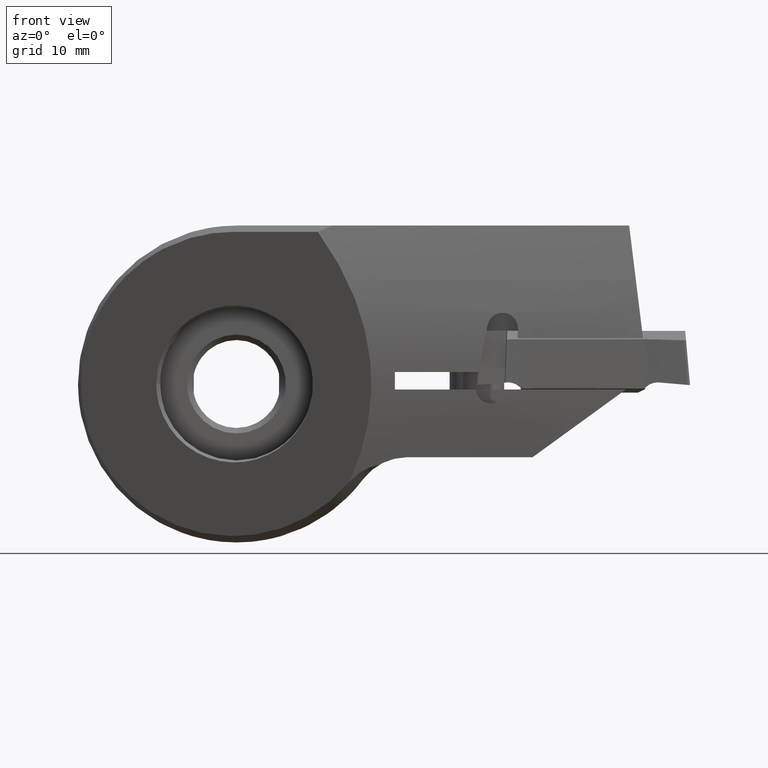
[diagram: clean part render]
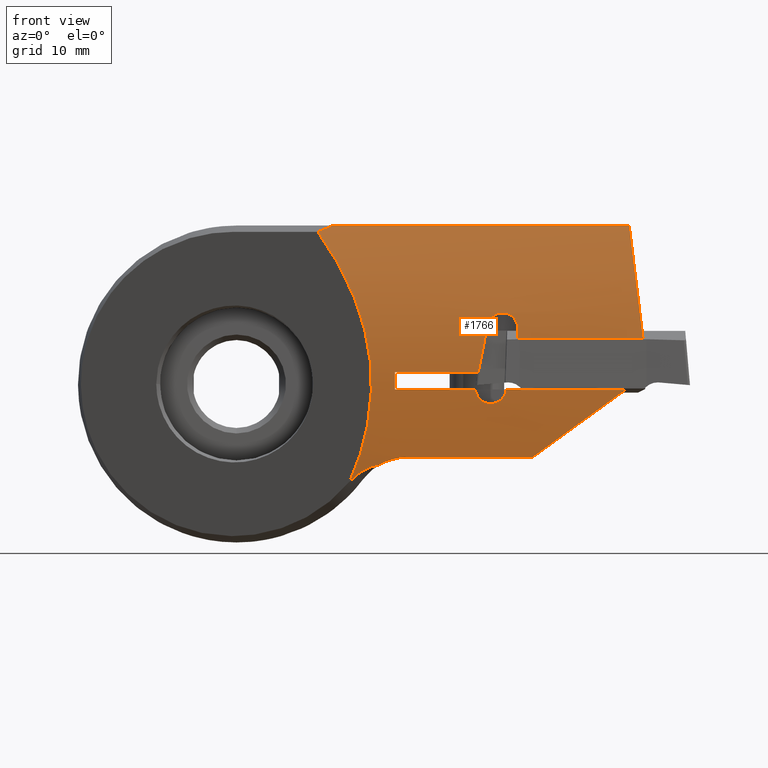
[diagram: same view with one face highlighted and labeled with its STEP entity id]
A machine part, front view. The second image highlights one B-rep face of the part: STEP entity #1766.
In plain terms, the highlighted cylindrical surface (partial cylindrical patch) has radius 43.5 mm, axis along (-1, -0, -0).
Its self-contained STEP definition (entity closure, byte-faithful):
#852=VERTEX_POINT('NONE',#2333);
#902=VERTEX_POINT('NONE',#2387);
#932=EDGE_CURVE('Kante115',#1468,#1460,#2420,.T.);
#974=VERTEX_POINT('NONE',#2467);
#1064=EDGE_CURVE('Kante129',#1834,#2154,#2566,.T.);
#1114=EDGE_CURVE('Kante112',#2132,#1922,#2622,.T.);
#1172=EDGE_CURVE('Kante83',#2132,#2154,#2687,.T.);
#1180=VERTEX_POINT('NONE',#2695);
#1198=EDGE_CURVE('NONE',#1820,#1900,#2713,.T.);
#1210=VERTEX_POINT('NONE',#2725);
#1244=EDGE_CURVE('Kante44',#1210,#1830,#2763,.T.);
#1250=VERTEX_POINT('NONE',#2769);
#1254=VERTEX_POINT('NONE',#2774);
#1270=EDGE_CURVE('NONE',#1180,#1870,#2790,.T.);
#1286=EDGE_CURVE('NONE',#1460,#1250,#2807,.T.);
#1460=VERTEX_POINT('NONE',#2996);
#1468=VERTEX_POINT('NONE',#3005);
#1488=EDGE_CURVE('Kante71',#902,#852,#3027,.T.);
#1536=EDGE_CURVE('Kante70',#1250,#1254,#3081,.T.);
#1542=VERTEX_POINT('NONE',#3088);
#1544=EDGE_CURVE('NONE',#1830,#1834,#3090,.T.);
#1672=EDGE_CURVE('Kante65',#974,#1180,#3229,.T.);
#1702=VERTEX_POINT('NONE',#3260);
#1766=ADVANCED_FACE('NONE',(#3330),#3331,.T.);
#1820=VERTEX_POINT('NONE',#3392);
#1830=VERTEX_POINT('NONE',#3402);
#1834=VERTEX_POINT('NONE',#3406);
#1844=EDGE_CURVE('NONE',#1922,#974,#3419,.F.);
#1870=VERTEX_POINT('NONE',#3447);
#1872=EDGE_CURVE('Kante42',#1468,#1210,#3449,.T.);
#1900=VERTEX_POINT('NONE',#3480);
#1916=EDGE_CURVE('Kante43',#852,#1542,#3497,.T.);
#1922=VERTEX_POINT('NONE',#3503);
#1948=EDGE_CURVE('Kante72',#1900,#1254,#3530,.T.);
#2074=EDGE_CURVE('Kante101',#1870,#902,#3674,.T.);
#2124=EDGE_CURVE('Kante32',#1820,#1702,#3728,.T.);
#2132=VERTEX_POINT('NONE',#3737);
#2136=EDGE_CURVE('Kante68',#1702,#1542,#3741,.T.);
#2154=VERTEX_POINT('NONE',#3762);
#2333=CARTESIAN_POINT('',(15.6,-21.6809260021233,-6.7));
#2387=CARTESIAN_POINT('',(13.0859490036588,-21.569743212816,-7.3780157811719));
#2420=LINE('',#4184,#4185);
#2467=CARTESIAN_POINT('',(7.44293815787788,-19.9117994839783,13.9225566363498));
#2566=LINE('',#4425,#4426);
#2622=LINE('',#4551,#4552);
#2687=ELLIPSE('',#4701,43.8266774074599,43.5);
#2695=CARTESIAN_POINT('',(10.3681195455965,-21.275833966564,-8.91898884692533));
#2713=ELLIPSE('',#4748,44.3141762305518,43.5);
#2725=CARTESIAN_POINT('',(22.9660219431733,-21.8676254584787,5.36713259352716));
#2763=B_SPLINE_CURVE_WITH_KNOTS('',3,(#4824,#4825,#4826,#4827,#4828,#4829,#4830,#4831,#4832,#4833,#4834,#4835,#4836,#4837,#4838,#4839,#4840,#4841,#4842,#4843,#4844,#4845,#4846,#4847,#4848,#4849,#4850,#4851,#4852,#4853,#4854),.UNSPECIFIED.,.F.,.F.,(4,2,2,2,2,2,2,3,2,2,2,2,2,2,4),(-3.70675572449579,-3.17962384815258,-2.64915401871128,-2.11868418926997,-1.58663422030921,-1.05458425134846,-0.527292125674229,0.0,0.527292125674229,1.05458425134846,1.58663422030921,2.11868418926997,2.64915401871128,3.17962384815258,3.70675572449579),.UNSPECIFIED.);
#2769=CARTESIAN_POINT('',(14.5,-22.1971263418631,-0.499999999999999));
#2774=CARTESIAN_POINT('',(21.8747842953657,-22.1971263418631,-0.5));
#2790=B_SPLINE_CURVE_WITH_KNOTS('',3,(#4889,#4890,#4891,#4892),.UNSPECIFIED.,.F.,.F.,(4,4),(-2.17256673236491,-0.0),.UNSPECIFIED.);
#2807=CIRCLE('',#4915,43.5);
#2996=CARTESIAN_POINT('',(14.5,-22.1860897299355,1.1));
#3005=CARTESIAN_POINT('',(22.1365753905119,-22.1860897299355,1.1));
#3027=B_SPLINE_CURVE_WITH_KNOTS('',3,(#5406,#5407,#5408,#5409,#5410,#5411,#5412,#5413,#5414,#5415,#5416,#5417,#5418,#5419,#5420,#5421,#5422,#5423),.UNSPECIFIED.,.F.,.F.,(4,2,2,2,2,2,2,2,4),(7.57098965901422,8.31604520726319,9.06110075551216,9.79284171407472,10.5245826726373,11.2563236311998,11.9880645897624,12.7198055483249,13.4515465068875),.UNSPECIFIED.);
#3081=LINE('',#5501,#5502);
#3088=CARTESIAN_POINT('',(27.1,-21.6809260021233,-6.7));
#3090=CIRCLE('',#5512,43.5);
#3229=ELLIPSE('',#5746,102.929768867133,43.5);
#3260=CARTESIAN_POINT('',(35.6335679069214,-22.1971263418631,-0.499999999999999));
#3330=FACE_OUTER_BOUND('',#5921,.T.);
#3331=CYLINDRICAL_SURFACE('',#5922,43.5);
#3392=CARTESIAN_POINT('',(24.6779736417661,-22.1971263418631,-0.5));
#3402=CARTESIAN_POINT('',(25.7403,-21.9,5.1));
#3406=CARTESIAN_POINT('',(25.7403,-21.9967666229246,4.20000000000001));
#3419=ELLIPSE('',#6063,170.070600471816,43.5);
#3447=CARTESIAN_POINT('',(10.9362458107321,-21.3800676624774,-8.40605878675312));
#3449=ELLIPSE('',#6109,44.3141762305518,43.5);
#3480=CARTESIAN_POINT('',(24.6454863565693,-22.1948839991861,-0.667132593527155));
#3497=LINE('',#6185,#6186);
#3503=CARTESIAN_POINT('',(8.81207596660452,-19.7121933088198,14.5));
#3530=B_SPLINE_CURVE_WITH_KNOTS('',3,(#6375,#6376,#6377,#6378,#6379,#6380,#6381,#6382,#6383,#6384,#6385,#6386,#6387,#6388,#6389,#6390,#6391,#6392,#6393,#6394,#6395,#6396,#6397,#6398,#6399,#6400,#6401,#6402,#6403,#6404),.UNSPECIFIED.,.F.,.F.,(4,2,2,2,2,2,2,2,2,2,2,2,2,2,4),(0.527393232653775,1.05478646530755,1.58214975150144,2.10951303769534,2.63699756863369,3.16448209957203,3.69188743212655,4.21929276468107,4.74669809723558,5.2741034297901,5.80158796072845,6.3290724916668,6.85643577786069,7.38379906405458,7.91119229670836),.UNSPECIFIED.);
#3674=B_SPLINE_CURVE_WITH_KNOTS('',3,(#6627,#6628,#6629,#6630,#6631,#6632,#6633,#6634),.UNSPECIFIED.,.F.,.F.,(4,2,2,4),(-2.09646410861757,-0.959108859915527,-0.525215119087045,-0.0),.UNSPECIFIED.);
#3728=LINE('',#6727,#6728);
#3737=CARTESIAN_POINT('',(35.9353190227002,-19.7121933088198,14.5));
#3741=ELLIPSE('',#6745,74.006620326628,43.5);
#3762=CARTESIAN_POINT('',(37.2,-21.9967666229246,4.20000000000001));
#4184=CARTESIAN_POINT('',(-17.6127080987776,-22.1860897299355,1.1));
#4185=VECTOR('',#7154,1.0);
#4425=CARTESIAN_POINT('',(-17.6127080987776,-21.9967666229246,4.20000000000001));
#4426=VECTOR('',#7317,1.0);
#4551=CARTESIAN_POINT('',(-17.6127080987776,-19.7121933088198,14.5));
#4552=VECTOR('',#7386,1.0);
#4701=AXIS2_PLACEMENT_3D('',#7462,#7463,#7464);
#4748=AXIS2_PLACEMENT_3D('',#7477,#7478,#7479);
#4824=CARTESIAN_POINT('',(23.8049141856533,-22.0331421026392,3.80641504732147));
#4825=CARTESIAN_POINT('',(23.6326204192629,-22.0268783090666,3.87772357655864));
#4826=CARTESIAN_POINT('',(23.4754151705198,-22.0172415022297,3.98523080219323));
#4827=CARTESIAN_POINT('',(23.2264495050549,-21.9936646432341,4.23370692005608));
#4828=CARTESIAN_POINT('',(23.118430117894,-21.9781105086881,4.39150309016154));
#4829=CARTESIAN_POINT('',(22.9753610502565,-21.9416739915236,4.73685328089034));
#4830=CARTESIAN_POINT('',(22.9403,-21.9207310048287,4.92439619439184));
#4831=CARTESIAN_POINT('',(22.9403,-21.8792072425923,5.27612688627666));
#4832=CARTESIAN_POINT('',(22.9755482980711,-21.8558340784187,5.46391196601479));
#4833=CARTESIAN_POINT('',(23.118932018971,-21.8106865426616,5.80939366865678));
#4834=CARTESIAN_POINT('',(23.2270685953612,-21.7889727469151,5.96709772615497));
#4835=CARTESIAN_POINT('',(23.4759536607507,-21.7538944124633,6.21512041453671));
#4836=CARTESIAN_POINT('',(23.632919727606,-21.7381475665388,6.32242348819066));
#4837=CARTESIAN_POINT('',(23.9772062673065,-21.7169809039285,6.46486957685472));
#4838=CARTESIAN_POINT('',(24.1645359581086,-21.7116263352131,6.5));
#4839=CARTESIAN_POINT('',(24.3403,-21.7116263352131,6.5));
#4840=CARTESIAN_POINT('',(24.5160640418914,-21.7116263352131,6.5));
#4841=CARTESIAN_POINT('',(24.7033937326935,-21.7169809039285,6.46486957685472));
#4842=CARTESIAN_POINT('',(25.047680272394,-21.7381475665388,6.32242348819066));
#4843=CARTESIAN_POINT('',(25.2046463392493,-21.7538944124633,6.21512041453671));
#4844=CARTESIAN_POINT('',(25.4535314046388,-21.7889727469151,5.96709772615498));
#4845=CARTESIAN_POINT('',(25.561667981029,-21.8106865426616,5.80939366865678));
#4846=CARTESIAN_POINT('',(25.7050517019289,-21.8558340784187,5.46391196601479));
#4847=CARTESIAN_POINT('',(25.7403,-21.8792072425923,5.27612688627666));
#4848=CARTESIAN_POINT('',(25.7403,-21.9207310048287,4.92439619439184));
#4849=CARTESIAN_POINT('',(25.7052389497435,-21.9416739915236,4.73685328089034));
#4850=CARTESIAN_POINT('',(25.562169882106,-21.9781105086881,4.39150309016154));
#4851=CARTESIAN_POINT('',(25.4541504949451,-21.9936646432341,4.23370692005608));
#4852=CARTESIAN_POINT('',(25.2051848294802,-22.0172415022297,3.98523080219323));
#4853=CARTESIAN_POINT('',(25.0479795807371,-22.0268783090666,3.87772357655864));
#4854=CARTESIAN_POINT('',(24.8756858143467,-22.0331421026392,3.80641504732147));
#4889=CARTESIAN_POINT('',(10.0366866190972,-21.2190206056165,-9.18601582510914));
#4890=CARTESIAN_POINT('',(10.5975200563494,-21.3126716369851,-8.75253626135632));
#4891=CARTESIAN_POINT('',(10.8513525242242,-21.3674330343232,-8.48503899453891));
#4892=CARTESIAN_POINT('',(11.3697356848344,-21.4602944290502,-7.98794218437629));
#4915=AXIS2_PLACEMENT_3D('',#7551,#7552,#7553);
#5406=CARTESIAN_POINT('',(11.6064690564624,-21.3228773300921,-8.69139391029541));
#5407=CARTESIAN_POINT('',(11.7651830313351,-21.3658362724741,-8.48072186330033));
#5408=CARTESIAN_POINT('',(11.9412613726742,-21.4046764022959,-8.28217955744991));
#5409=CARTESIAN_POINT('',(12.3162565591376,-21.4732409122962,-7.92046379355148));
#5410=CARTESIAN_POINT('',(12.5151770591915,-21.5029820516788,-7.7572973016177));
#5411=CARTESIAN_POINT('',(12.9152761464541,-21.5531850164227,-7.47493989082742));
#5412=CARTESIAN_POINT('',(13.1321706959629,-21.5757690156352,-7.34384627839024));
#5413=CARTESIAN_POINT('',(13.5925476181176,-21.6145942490457,-7.11345536866991));
#5414=CARTESIAN_POINT('',(13.8360282296099,-21.6308521082241,-7.01415735410275));
#5415=CARTESIAN_POINT('',(14.3356921614102,-21.6564906663561,-6.85539026367339));
#5416=CARTESIAN_POINT('',(14.5921374462409,-21.6658948712635,-6.79583875906904));
#5417=CARTESIAN_POINT('',(15.1023342396053,-21.6781121045912,-6.71814159219057));
#5418=CARTESIAN_POINT('',(15.3560863471458,-21.6809260021233,-6.7));
#5419=CARTESIAN_POINT('',(15.8439136528542,-21.6809260021233,-6.7));
#5420=CARTESIAN_POINT('',(16.0976657603947,-21.6781121045912,-6.71814159219057));
#5421=CARTESIAN_POINT('',(16.6078625537591,-21.6658948712635,-6.79583875906904));
#5422=CARTESIAN_POINT('',(16.8643078385897,-21.6564906663561,-6.85539026367338));
#5423=CARTESIAN_POINT('',(17.1141398044899,-21.6436713872901,-6.93477380888806));
#5501=CARTESIAN_POINT('',(-17.6127080987776,-22.1971263418631,-0.5));
#5502=VECTOR('',#7843,1.0);
#5512=AXIS2_PLACEMENT_3D('',#7858,#7859,#7860);
#5746=AXIS2_PLACEMENT_3D('',#7993,#7994,#7995);
#5921=EDGE_LOOP('',(#8092,#8093,#8094,#8095,#8096,#8097,#8098,#8099,#8100,#8101,#8102,#8103,#8104,#8105,#8106,#8107,#8108,#8109,#8110));
#5922=AXIS2_PLACEMENT_3D('',#8111,#8112,#8113);
#6063=AXIS2_PLACEMENT_3D('',#8211,#8212,#8213);
#6109=AXIS2_PLACEMENT_3D('',#8243,#8244,#8245);
#6185=CARTESIAN_POINT('',(-17.6127080987776,-21.6809260021233,-6.70000000000001));
#6186=VECTOR('',#8290,1.0);
#6375=CARTESIAN_POINT('',(23.8069849023603,-22.190824263101,0.893423145025388));
#6376=CARTESIAN_POINT('',(23.9794529399393,-22.1922918752331,0.821981452391653));
#6377=CARTESIAN_POINT('',(24.1368788587591,-22.1943137072915,0.714233587623244));
#6378=CARTESIAN_POINT('',(24.3854707621723,-22.1976854575374,0.465631365015235));
#6379=CARTESIAN_POINT('',(24.4932103334612,-22.1992500171556,0.308207093872801));
#6380=CARTESIAN_POINT('',(24.6360792273192,-22.2003263830946,-0.0367182781964587));
#6381=CARTESIAN_POINT('',(24.6712082997426,-22.1997773198539,-0.224219669996807));
#6382=CARTESIAN_POINT('',(24.6712082997426,-22.1965440698397,-0.575820743209327));
#6383=CARTESIAN_POINT('',(24.6360647840545,-22.1936440155565,-0.763340786235667));
#6384=CARTESIAN_POINT('',(24.4931716231297,-22.1862217540723,-1.10827634805061));
#6385=CARTESIAN_POINT('',(24.3854229854578,-22.1817603628225,-1.26569359017669));
#6386=CARTESIAN_POINT('',(24.136837274678,-22.1738136621937,-1.51426072244722));
#6387=CARTESIAN_POINT('',(23.9794298034158,-22.1698084875475,-1.62199283947013));
#6388=CARTESIAN_POINT('',(23.6345169178759,-22.1642424213975,-1.76486301234328));
#6389=CARTESIAN_POINT('',(23.4470100772608,-22.162742665414,-1.8));
#6390=CARTESIAN_POINT('',(23.0954065222244,-22.162742665414,-1.8));
#6391=CARTESIAN_POINT('',(22.9078996816093,-22.1642424213975,-1.76486301234328));
#6392=CARTESIAN_POINT('',(22.5629867960694,-22.1698084875475,-1.62199283947013));
#6393=CARTESIAN_POINT('',(22.4055793248072,-22.1738136621937,-1.51426072244722));
#6394=CARTESIAN_POINT('',(22.1569936140273,-22.1817603628225,-1.26569359017669));
#6395=CARTESIAN_POINT('',(22.0492449763555,-22.1862217540723,-1.10827634805061));
#6396=CARTESIAN_POINT('',(21.9063518154307,-22.1936440155565,-0.763340786235669));
#6397=CARTESIAN_POINT('',(21.8712082997426,-22.1965440698397,-0.575820743209328));
#6398=CARTESIAN_POINT('',(21.8712082997426,-22.1997773198539,-0.224219669996807));
#6399=CARTESIAN_POINT('',(21.906337372166,-22.2003263830946,-0.0367182781964586));
#6400=CARTESIAN_POINT('',(22.049206266024,-22.1992500171556,0.308207093872801));
#6401=CARTESIAN_POINT('',(22.1569458373128,-22.1976854575374,0.465631365015236));
#6402=CARTESIAN_POINT('',(22.405537740726,-22.1943137072915,0.714233587623245));
#6403=CARTESIAN_POINT('',(22.5629636595459,-22.1922918752331,0.821981452391653));
#6404=CARTESIAN_POINT('',(22.7354316971248,-22.190824263101,0.893423145025388));
#6627=CARTESIAN_POINT('',(10.8645559954062,-21.3664299269562,-8.47500780460641));
#6628=CARTESIAN_POINT('',(11.0355106764969,-21.3991821443107,-8.31012061878567));
#6629=CARTESIAN_POINT('',(11.3329507736947,-21.4548555859403,-8.02153847209059));
#6630=CARTESIAN_POINT('',(12.0871582931775,-21.5212968536962,-7.6548758599103));
#6631=CARTESIAN_POINT('',(12.3043066144817,-21.536054732085,-7.57145252425067));
#6632=CARTESIAN_POINT('',(12.7962056719305,-21.5615779456851,-7.42574560755491));
#6633=CARTESIAN_POINT('',(13.0139860043339,-21.5678200248699,-7.38923423958134));
#6634=CARTESIAN_POINT('',(13.1868263073116,-21.5725354075379,-7.36177340926819));
#6727=CARTESIAN_POINT('',(-17.6127080987776,-22.1971263418631,-0.5));
#6728=VECTOR('',#8553,1.0);
#6745=AXIS2_PLACEMENT_3D('',#8567,#8568,#8569);
#7154=DIRECTION('',(-1.0,0.0,0.0));
#7317=DIRECTION('',(1.0,0.0,0.0));
#7386=DIRECTION('',(-1.0,0.0,0.0));
#7462=CARTESIAN_POINT('',(37.7156951557922,21.3,0.0));
#7463=DIRECTION('',(0.992546151641323,-1.51699833501554E-016,0.12186934340514));
#7464=DIRECTION('',(0.12186934340514,0.0,-0.992546151641323));
#7477=CARTESIAN_POINT('',(24.775163796335,21.3,0.0));
#7478=DIRECTION('',(0.981627183447665,-1.50030988527194E-016,-0.190808995376539));
#7479=DIRECTION('',(-0.190808995376539,0.0,-0.981627183447665));
#7551=CARTESIAN_POINT('',(14.5,21.3,0.0));
#7552=DIRECTION('',(1.0,0.0,0.0));
#7553=DIRECTION('',(0.0,0.0,-1.0));
#7843=DIRECTION('',(1.0,0.0,0.0));
#7858=CARTESIAN_POINT('',(25.7403,21.3,0.0));
#7859=DIRECTION('',(1.0,-3.57028744646768E-048,-2.33597821661981E-032));
#7860=DIRECTION('',(-2.33597821661981E-032,8.34011370201966E-080,-1.0));
#7993=CARTESIAN_POINT('',(-80.9360510421654,21.3,0.0));
#7994=DIRECTION('',(0.422618261740701,0.906307787036649,0.0));
#7995=DIRECTION('',(-0.906307787036649,0.422618261740701,-0.0));
#8092=ORIENTED_EDGE('',*,*,#1114,.T.);
#8093=ORIENTED_EDGE('',*,*,#1844,.T.);
#8094=ORIENTED_EDGE('',*,*,#1672,.T.);
#8095=ORIENTED_EDGE('',*,*,#1270,.T.);
#8096=ORIENTED_EDGE('',*,*,#2074,.T.);
#8097=ORIENTED_EDGE('',*,*,#1488,.T.);
#8098=ORIENTED_EDGE('',*,*,#1916,.T.);
#8099=ORIENTED_EDGE('',*,*,#2136,.F.);
#8100=ORIENTED_EDGE('',*,*,#2124,.F.);
#8101=ORIENTED_EDGE('',*,*,#1198,.T.);
#8102=ORIENTED_EDGE('',*,*,#1948,.T.);
#8103=ORIENTED_EDGE('',*,*,#1536,.F.);
#8104=ORIENTED_EDGE('',*,*,#1286,.F.);
#8105=ORIENTED_EDGE('',*,*,#932,.F.);
#8106=ORIENTED_EDGE('',*,*,#1872,.T.);
#8107=ORIENTED_EDGE('',*,*,#1244,.T.);
#8108=ORIENTED_EDGE('',*,*,#1544,.T.);
#8109=ORIENTED_EDGE('',*,*,#1064,.T.);
#8110=ORIENTED_EDGE('',*,*,#1172,.F.);
#8111=CARTESIAN_POINT('',(-17.6127080987776,21.3,0.0));
#8112=DIRECTION('',(-1.0,-0.0,-0.0));
#8113=DIRECTION('',(0.0,0.0,-1.0));
#8211=CARTESIAN_POINT('',(-124.267649664348,21.3,0.0));
#8212=DIRECTION('',(-0.255776129909113,-0.548513680691242,0.7960598680145));
#8213=DIRECTION('',(-0.966736040172661,0.145124108980515,-0.210619138788228));
#8243=CARTESIAN_POINT('',(21.9227570504604,21.3,0.0));
#8244=DIRECTION('',(-0.981627183447665,1.50030988527195E-016,0.190808995376538));
#8245=DIRECTION('',(-0.190808995376538,0.0,-0.981627183447665));
#8290=DIRECTION('',(1.0,0.0,0.0));
#8553=DIRECTION('',(1.0,0.0,0.0));
#8567=CARTESIAN_POINT('',(36.321758867157,21.3,0.0));
#8568=DIRECTION('',(0.587785252292469,0.0,-0.809016994374951));
#8569=DIRECTION('',(-0.809016994374951,0.0,-0.587785252292469));